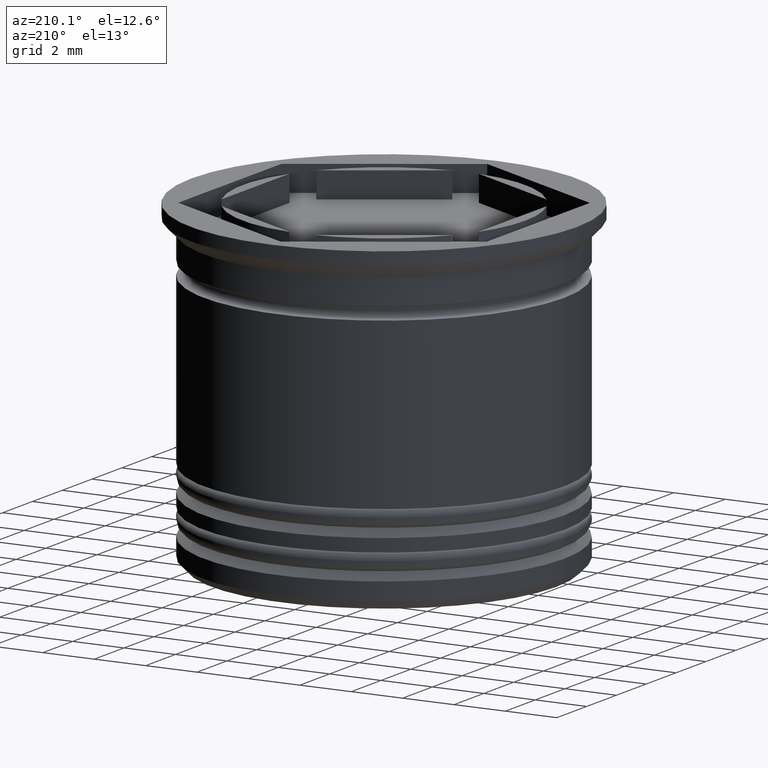
[diagram: clean part render]
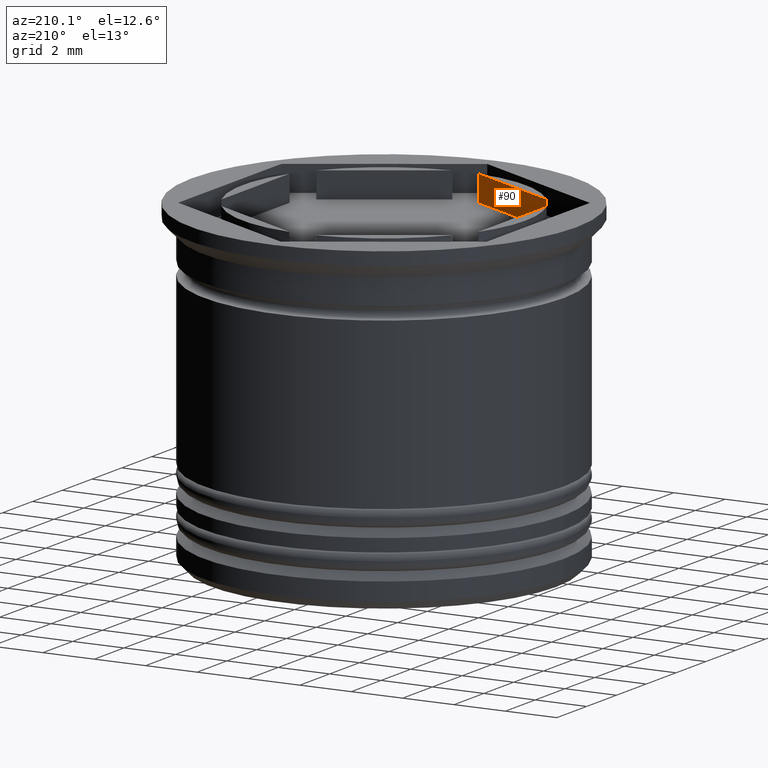
[diagram: same view with one face highlighted and labeled with its STEP entity id]
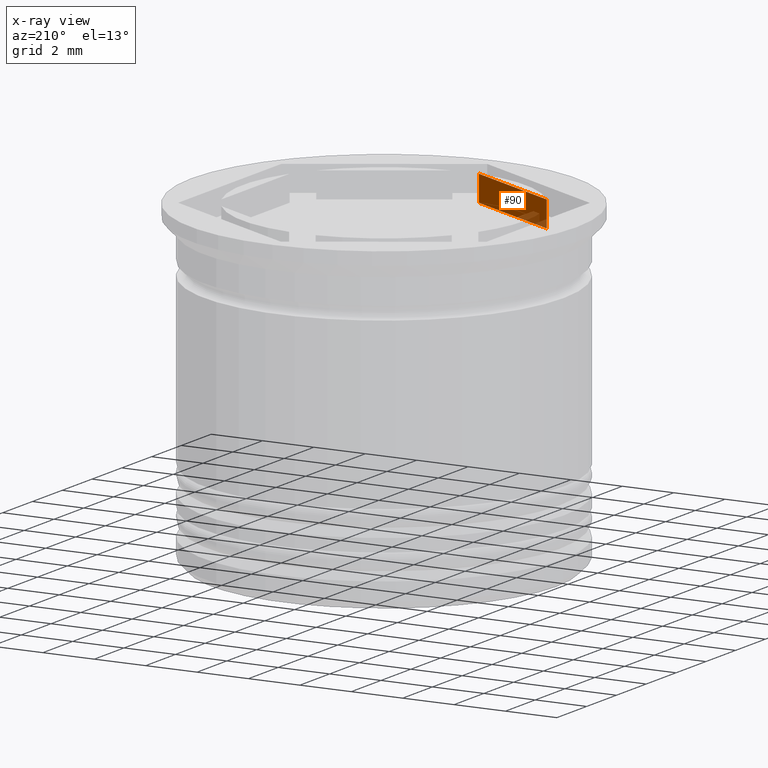
[diagram: x-ray of the same camera — body ghosted, the highlighted face saturated]
A machine part, auxiliary view. The second image highlights one B-rep face of the part: STEP entity #90.
The next image is the same camera in x-ray: the body ghosted, the highlighted face saturated — about 11% of this face is hidden behind the body in this view.
In plain terms, the highlighted planar face has unit normal (-0.5, -0.866, 0).
Its self-contained STEP definition (entity closure, byte-faithful):
#3 = ORIENTED_EDGE ( 'NONE', *, *, #643, .T. ) ;
#25 = CARTESIAN_POINT ( 'NONE',  ( -0.5156865167015569629, -5.475770942661155161, -1.000000000000000888 ) ) ;
#39 = CARTESIAN_POINT ( 'NONE',  ( -5.000000000000000888, -2.886751345948129543, -1.000000000000000888 ) ) ;
#90 = ADVANCED_FACE ( 'NONE', ( #1336 ), #572, .F. ) ;
#99 = CARTESIAN_POINT ( 'NONE',  ( -5.000000000000000888, -2.886751345948129543, -16.27525231651946669 ) ) ;
#364 = DIRECTION ( 'NONE',  ( -0.8660254037844385966, 0.5000000000000001110, 0.000000000000000000 ) ) ;
#386 = DIRECTION ( 'NONE',  ( 0.8660254037844385966, -0.5000000000000001110, 0.000000000000000000 ) ) ;
#548 = VECTOR ( 'NONE', #1582, 1000.000000000000000 ) ;
#572 = PLANE ( 'NONE',  #1909 ) ;
#618 = EDGE_CURVE ( 'NONE', #811, #901, #995, .T. ) ;
#643 = EDGE_CURVE ( 'NONE', #819, #1127, #1424, .T. ) ;
#811 = VERTEX_POINT ( 'NONE', #1123 ) ;
#819 = VERTEX_POINT ( 'NONE', #25 ) ;
#841 = CARTESIAN_POINT ( 'NONE',  ( -0.5156865167015569629, -5.475770942661155161, 15.55634918610404682 ) ) ;
#843 = CARTESIAN_POINT ( 'NONE',  ( -2.500000000000000888, -4.330127018922194537, 0.000000000000000000 ) ) ;
#885 = EDGE_CURVE ( 'NONE', #819, #901, #1176, .T. ) ;
#901 = VERTEX_POINT ( 'NONE', #1802 ) ;
#961 = VECTOR ( 'NONE', #1684, 1000.000000000000000 ) ;
#995 = LINE ( 'NONE', #843, #1104 ) ;
#1042 = DIRECTION ( 'NONE',  ( -0.5000000000000001110, -0.8660254037844385966, 0.000000000000000000 ) ) ;
#1076 = CARTESIAN_POINT ( 'NONE',  ( -4.484313483298445036, -3.184483095183233470, 15.55634918610404682 ) ) ;
#1104 = VECTOR ( 'NONE', #1919, 1000.000000000000000 ) ;
#1123 = CARTESIAN_POINT ( 'NONE',  ( -4.484313483298445036, -3.184483095183233470, 0.000000000000000000 ) ) ;
#1127 = VERTEX_POINT ( 'NONE', #1392 ) ;
#1176 = LINE ( 'NONE', #841, #548 ) ;
#1251 = ORIENTED_EDGE ( 'NONE', *, *, #885, .F. ) ;
#1298 = ORIENTED_EDGE ( 'NONE', *, *, #1327, .F. ) ;
#1327 = EDGE_CURVE ( 'NONE', #811, #1127, #1825, .T. ) ;
#1336 = FACE_OUTER_BOUND ( 'NONE', #1503, .T. ) ;
#1392 = CARTESIAN_POINT ( 'NONE',  ( -4.484313483298445036, -3.184483095183233470, -1.000000000000000888 ) ) ;
#1424 = LINE ( 'NONE', #39, #1513 ) ;
#1503 = EDGE_LOOP ( 'NONE', ( #1698, #1251, #3, #1298 ) ) ;
#1513 = VECTOR ( 'NONE', #364, 1000.000000000000000 ) ;
#1582 = DIRECTION ( 'NONE',  ( 0.000000000000000000, 0.000000000000000000, 1.000000000000000000 ) ) ;
#1684 = DIRECTION ( 'NONE',  ( -0.000000000000000000, -0.000000000000000000, -1.000000000000000000 ) ) ;
#1698 = ORIENTED_EDGE ( 'NONE', *, *, #618, .T. ) ;
#1802 = CARTESIAN_POINT ( 'NONE',  ( -0.5156865167015569629, -5.475770942661155161, 0.000000000000000000 ) ) ;
#1825 = LINE ( 'NONE', #1076, #961 ) ;
#1909 = AXIS2_PLACEMENT_3D ( 'NONE', #99, #1042, #386 ) ;
#1919 = DIRECTION ( 'NONE',  ( 0.8660254037844385966, -0.5000000000000001110, 0.000000000000000000 ) ) ;